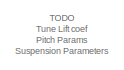
[diagram: root canvas - part 1/2, top right region]
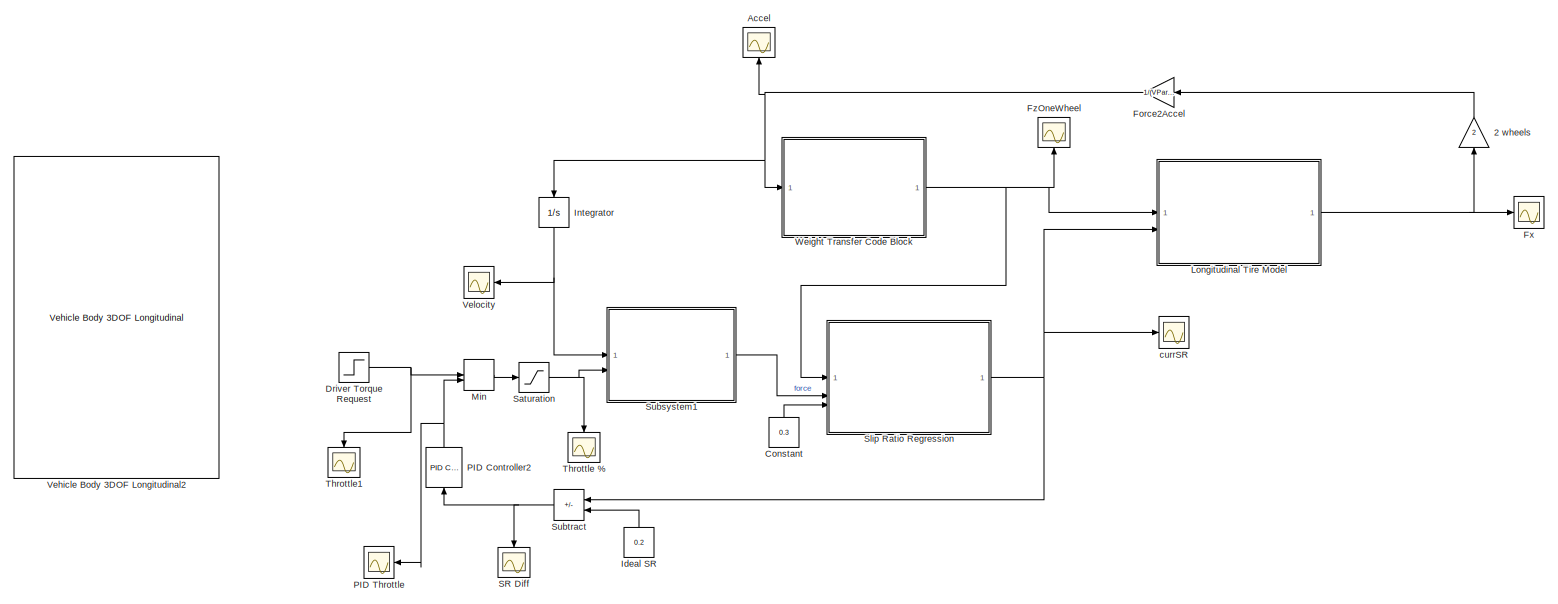
[diagram: root canvas - part 2/2, full width, middle band]
MODEL slx_ae3624eb6239
KIND model
CONFIG AbsTol = auto
CONFIG EnableMultiTasking = off
CONFIG FixedStep = auto
CONFIG MaxStep = 0.0002
CONFIG MinStep = auto
CONFIG RelTol = 1e-3
CONFIG SampleTimeConstraint = Unconstrained
CONFIG SolverName = ode45
CONFIG StartTime = 0.0
CONFIG StopTime = 5
BLOCK [Gain] 2 wheels
  Gain = 2
  NameLocation = right
BLOCK [Scope] Accel
  Floating = off
  NameLocation = right
  NumInputPorts = 1
  ScopeSpecificationString = Simulink.scopes.TimeScopeBlockCfg('CurrentConfiguration', extmgr.ConfigurationSet(extmgr.Configuration('Core','General UI',true),extmgr.Configuration('Core','Source UI',true),extmgr.Configuration('Sources','WiredSimulink',true,'DataLoggingVariableName','ScopeData3'),extmgr.Configuration('Visuals','Time Domain',true,'SerializedDisplays',{struct('MinYLimReal','-0.03335','MaxYLimReal','-0.01335','YLa...<+1538ch>
BLOCK [Constant] Constant
  NameLocation = right
  Value = 0.3
BLOCK [Step] Driver Torque Request
  After = 100
  SampleTime = 0
  Time = 0.05
BLOCK [Gain] Force2Accel
  Gain = 1/(VParameters.m.total)
  NameLocation = top
BLOCK [Scope] Fx
  Floating = off
  NumInputPorts = 1
  ScopeSpecificationString = Simulink.scopes.TimeScopeBlockCfg('CurrentConfiguration', extmgr.ConfigurationSet(extmgr.Configuration('Core','General UI',true),extmgr.Configuration('Core','Source UI',true),extmgr.Configuration('Sources','WiredSimulink',true,'DataLoggingVariableName','ScopeData2'),extmgr.Configuration('Visuals','Time Domain',true,'SerializedDisplays',{struct('MinYLimReal','-4.16331','MaxYLimReal','-2.16331','YLa...<+1533ch>
BLOCK [Scope] FzOneWheel
  Floating = off
  NameLocation = right
  NumInputPorts = 1
  ScopeSpecificationString = Simulink.scopes.TimeScopeBlockCfg('CurrentConfiguration', extmgr.ConfigurationSet(extmgr.Configuration('Core','General UI',true),extmgr.Configuration('Core','Source UI',true),extmgr.Configuration('Sources','WiredSimulink',true,'DataLoggingVariableName','ScopeData4'),extmgr.Configuration('Visuals','Time Domain',true,'SerializedDisplays',{struct('MinYLimReal','506.84167','MaxYLimReal','706.84167','Y...<+1565ch>
BLOCK [Constant] Ideal SR
  NameLocation = right
  Value = 0.2
BLOCK [Integrator] Integrator
  NameLocation = left
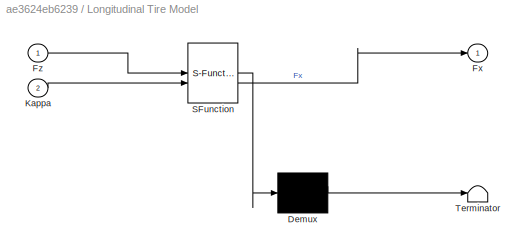
BLOCK [SubSystem] Longitudinal Tire Model
  ErrorFcn = Stateflow.Translate.translate
  PermitHierarchicalResolution = ExplicitOnly
  SFBlockType = MATLAB Function
  TreatAsAtomicUnit = on
BLOCK [Demux] Longitudinal Tire Model/ Demux 
  Outputs = 1
BLOCK [S-Function] Longitudinal Tire Model/ SFunction 
  EnableBusSupport = on
  FunctionName = sf_sfun
  Parameters = TireParameters
  PortCounts = [2 2]
  SFcnIsStateOwnerBlock = off
  SFunctionDeploymentMode = off
  Tag = Stateflow S-Function 2
BLOCK [Terminator] Longitudinal Tire Model/ Terminator 
BLOCK [Outport] Longitudinal Tire Model/Fx
BLOCK [Inport] Longitudinal Tire Model/Fz
BLOCK [Inport] Longitudinal Tire Model/Kappa
  Port = 2
BLOCK [MinMax] Min
  Inputs = 2
BLOCK [Reference] PID Controller2  REF=slpidlib/PID Controller
  LibrarySourceBlock = simulink/Continuous/PID Controller
  NameLocation = right
  SourceBlock = slpidlib/PID Controller
  SourceType = PID 1dof
BLOCK [Scope] PID Throttle
  Floating = off
  NameLocation = top
  NumInputPorts = 1
  ScopeSpecificationString = Simulink.scopes.TimeScopeBlockCfg('CurrentConfiguration', extmgr.ConfigurationSet(extmgr.Configuration('Core','General UI',true),extmgr.Configuration('Core','Source UI',true),extmgr.Configuration('Sources','WiredSimulink',true,'DataLoggingVariableName','ScopeData1'),extmgr.Configuration('Visuals','Time Domain',true,'SerializedDisplays',{struct('MinYLimReal','-0.3','MaxYLimReal','-0.1','YLabelReal'...<+1529ch>
BLOCK [Scope] SR Diff
  Floating = off
  NameLocation = left
  NumInputPorts = 1
  ScopeSpecificationString = Simulink.scopes.TimeScopeBlockCfg('CurrentConfiguration', extmgr.ConfigurationSet(extmgr.Configuration('Core','General UI',true),extmgr.Configuration('Core','Source UI',true),extmgr.Configuration('Sources','WiredSimulink',true,'DataLoggingVariableName','ScopeData6'),extmgr.Configuration('Visuals','Time Domain',true,'SerializedDisplays',{struct('MinYLimReal','-0.3','MaxYLimReal','-0.1','YLabelReal'...<+1511ch>
BLOCK [Saturate] Saturation
  LowerLimit = 0
  UpperLimit = 100
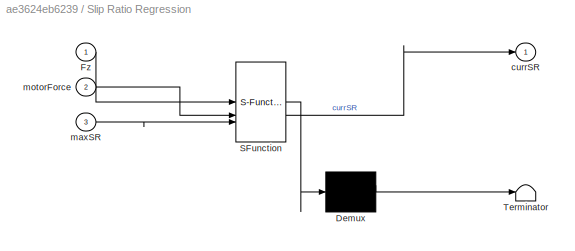
BLOCK [SubSystem] Slip Ratio Regression
  ErrorFcn = Stateflow.Translate.translate
  PermitHierarchicalResolution = ExplicitOnly
  SFBlockType = MATLAB Function
  TreatAsAtomicUnit = on
BLOCK [Demux] Slip Ratio Regression/ Demux 
  Outputs = 1
BLOCK [S-Function] Slip Ratio Regression/ SFunction 
  EnableBusSupport = on
  FunctionName = sf_sfun
  Parameters = TireParameters
  PortCounts = [3 2]
  SFcnIsStateOwnerBlock = off
  SFunctionDeploymentMode = off
  Tag = Stateflow S-Function 3
BLOCK [Terminator] Slip Ratio Regression/ Terminator 
BLOCK [Inport] Slip Ratio Regression/Fz
BLOCK [Outport] Slip Ratio Regression/currSR
BLOCK [Inport] Slip Ratio Regression/maxSR
  Port = 3
BLOCK [Inport] Slip Ratio Regression/motorForce
  Port = 2
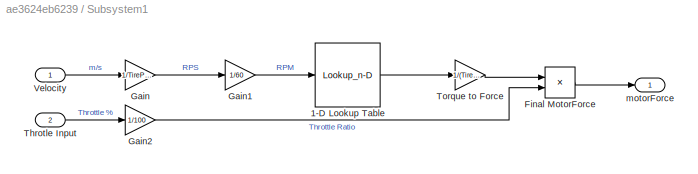
BLOCK [SubSystem] Subsystem1
BLOCK [Lookup_n-D] Subsystem1/1-D Lookup Table
  BreakpointsForDimension1 = DTParameters.torque_vs_RPM_breakpoints
  ExtrapMethod = Clip
  InputPortMap = u0
  InternalRulePriority = Speed
  NumberOfTableDimensions = 1
  RndMeth = Simplest
  Table = DTParameters.torque_vs_RPM_table
  UseLastTableValue = on
BLOCK [Product] Subsystem1/Final MotorForce
BLOCK [Gain] Subsystem1/Gain
  Gain = 1/TireParameters.wheel.circumfrence
BLOCK [Gain] Subsystem1/Gain1
  Gain = 1/60
BLOCK [Gain] Subsystem1/Gain2
  Gain = 1/100
BLOCK [Inport] Subsystem1/Throtle Input
  Port = 2
BLOCK [Gain] Subsystem1/Torque to Force
  Gain = 1/(TireParameters.wheel.diameter/2)
BLOCK [Inport] Subsystem1/Velocity
BLOCK [Outport] Subsystem1/motorForce
BLOCK [Sum] Subtract
  IconShape = rectangular
  Inputs = +-
  NameLocation = top
BLOCK [Scope] Throttle %
  Floating = off
  NameLocation = left
  NumInputPorts = 1
  ScopeSpecificationString = Simulink.scopes.TimeScopeBlockCfg('CurrentConfiguration', extmgr.ConfigurationSet(extmgr.Configuration('Core','General UI',true),extmgr.Configuration('Core','Source UI',true),extmgr.Configuration('Sources','WiredSimulink',true,'DataLoggingVariableName','ScopeData2'),extmgr.Configuration('Visuals','Time Domain',true,'SerializedDisplays',{struct('MinYLimReal','-1.00000','MaxYLimReal','1.00000','YLab...<+1535ch>
BLOCK [Scope] Throttle1
  Floating = off
  NameLocation = left
  NumInputPorts = 1
  ScopeSpecificationString = Simulink.scopes.TimeScopeBlockCfg('CurrentConfiguration', extmgr.ConfigurationSet(extmgr.Configuration('Core','General UI',true),extmgr.Configuration('Core','Source UI',true),extmgr.Configuration('Sources','WiredSimulink',true,'DataLoggingVariableName','ScopeData5'),extmgr.Configuration('Visuals','Time Domain',true,'SerializedDisplays',{struct('MinYLimReal','-12.5','MaxYLimReal','112.5','YLabelRea...<+1532ch>
BLOCK [Reference] Vehicle Body 3DOF Longitudinal2  REF=autolibshared/Vehicle Body 3DOF Longitudinal
  Commented = on
  LibrarySourceBlock = vehdynlibeom/Vehicle Body 3DOF Longitudinal
  SourceBlock = autolibshared/Vehicle Body 3DOF Longitudinal
  SourceType = Vehicle Body 3DOF Longitudinal
BLOCK [Scope] Velocity
  Floating = off
  NameLocation = top
  NumInputPorts = 1
  ScopeSpecificationString = Simulink.scopes.TimeScopeBlockCfg('CurrentConfiguration', extmgr.ConfigurationSet(extmgr.Configuration('Core','General UI',true),extmgr.Configuration('Core','Source UI',true),extmgr.Configuration('Sources','WiredSimulink',true,'DataLoggingVariableName','ScopeData1'),extmgr.Configuration('Visuals','Time Domain',true,'SerializedDisplays',{struct('MinYLimReal','-1.18081','MaxYLimReal','10.6156','YLab...<+1535ch>
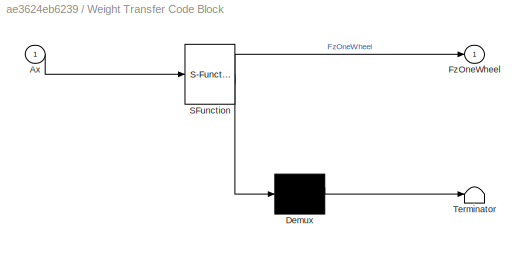
BLOCK [SubSystem] Weight Transfer Code Block
  ErrorFcn = Stateflow.Translate.translate
  PermitHierarchicalResolution = ExplicitOnly
  SFBlockType = MATLAB Function
  TreatAsAtomicUnit = on
BLOCK [Demux] Weight Transfer Code Block/ Demux 
  Outputs = 1
BLOCK [S-Function] Weight Transfer Code Block/ SFunction 
  EnableBusSupport = on
  FunctionName = sf_sfun
  Parameters = VParameters
  PortCounts = [1 2]
  SFcnIsStateOwnerBlock = off
  SFunctionDeploymentMode = off
  Tag = Stateflow S-Function 1
BLOCK [Terminator] Weight Transfer Code Block/ Terminator 
BLOCK [Inport] Weight Transfer Code Block/Ax
BLOCK [Outport] Weight Transfer Code Block/FzOneWheel
BLOCK [Scope] currSR
  Floating = off
  NumInputPorts = 1
  ScopeSpecificationString = Simulink.scopes.TimeScopeBlockCfg('CurrentConfiguration', extmgr.ConfigurationSet(extmgr.Configuration('Core','General UI',true),extmgr.Configuration('Core','Source UI',true),extmgr.Configuration('Sources','WiredSimulink',true,'DataLoggingVariableName','ScopeData4'),extmgr.Configuration('Visuals','Time Domain',true,'SerializedDisplays',{struct('MinYLimReal','-1.00000','MaxYLimReal','1.00000','YLab...<+1546ch>
ANNOTATION (root): TODO Tune Lift coef Pitch Params Suspension Parameters
LINE 2 wheels:1 -> Force2Accel:1
LINE Constant:1 -> Slip Ratio Regression:3
NET Driver Torque Request:1 -> Min:1, Throttle1:1
NET Force2Accel:1 -> Accel:1, Integrator:1, Weight Transfer Code Block:1
LINE Ideal SR:1 -> Subtract:2
NET Integrator:1 -> Subsystem1:1, Velocity:1
NET Longitudinal Tire Model:1 -> 2 wheels:1, Fx:1
LINE Min:1 -> Saturation:1
NET PID Controller2:1 -> Min:2, PID Throttle:1
NET Saturation:1 -> Subsystem1:2, Throttle %:1
NET Slip Ratio Regression:1 -> Longitudinal Tire Model:2, Subtract:1, currSR:1
LINE Subsystem1/1-D Lookup Table:1 -> Subsystem1/Torque to Force:1
LINE Subsystem1/Final MotorForce:1 -> Subsystem1/motorForce:1
LINE Subsystem1/Gain1:1 -> Subsystem1/1-D Lookup Table:1
LINE Subsystem1/Gain2:1 -> Subsystem1/Final MotorForce:2
LINE Subsystem1/Gain:1 -> Subsystem1/Gain1:1
LINE Subsystem1/Throtle Input:1 -> Subsystem1/Gain2:1
LINE Subsystem1/Torque to Force:1 -> Subsystem1/Final MotorForce:1
LINE Subsystem1/Velocity:1 -> Subsystem1/Gain:1
LINE Subsystem1:1 -> Slip Ratio Regression:2
NET Subtract:1 -> PID Controller2:1, SR Diff:1
NET Weight Transfer Code Block:1 -> FzOneWheel:1, Longitudinal Tire Model:1, Slip Ratio Regression:1
note: NET lines group one-source signal fan-out (src -> all destinations, sorted); 1:1 wires keep LINE
CHART Weight Transfer Code Block states=1 transitions=1
  STATE_LABEL 'eML_blk_kernel()'
  STATE_LABEL 'SCRIPT:\nfunction FzOneWheel = weightTransfer(Ax, VParameters)\n    \n    deltaFz = Ax .* VParameters.hCG .* VParameters.m.total ./ VParameters.wheelBase ;\n    deltaFz = deltaFz ./2; % Weight Transfer in each wheel in the back\n    FzOneWheel = VParameters.m.total .* 9.81 .* (VParameters.lf ./ VParameters.wheelBase) ./2 + deltaFz;\n\nend\n'
CHART Longitudinal Tire Model states=1 transitions=1
  STATE_LABEL 'eML_blk_kernel()'
  STATE_LABEL 'SCRIPT:\nfunction Fx = LongTM(Fz,Kappa, TireParameters)\n    \n    Pi = 70;\n    Inc = 0;\n    \n    dFz = (Fz - TireParameters.Pacejka.Fzo) ./ TireParameters.Pacejka.Fzo;\n    dPi = (Pi - TireParameters.Pacejka.Pio) ./ TireParameters.Pacejka.Pio;\n    \n    Cx = TireParameters.Pacejka.p.C.x(1) .* TireParameters.Pacejka.L.C.x;\n    \n    Dx = (TireParameters.Pacejka.p.D.x(1) + TireParameters.Pacejka.p.D.x(2)...<+1177ch>'
CHART Slip Ratio Regression states=1 transitions=1
  STATE_LABEL 'eML_blk_kernel()'
  STATE_LABEL "SCRIPT:\nfunction currSR = RegressSR(Fz, motorForce, maxSR, TireParameters)\n    currSR = 0.0; % Assign variable Type Double\n    \n    % disp(Fz)\n    % disp(motorForce)\n    % disp('-------------------------------------------------')\n\n    coder.extrinsic('regressSRFunction');\n    currSR = regressSRFunction(Fz, motorForce, maxSR, TireParameters);\n\n    if currSR < 9.5e-5\n        currSR = 0;\n    end\nend\n...<+1571ch>"
CHART  states=0 transitions=0
CHART  states=0 transitions=0
CHART  states=0 transitions=0
